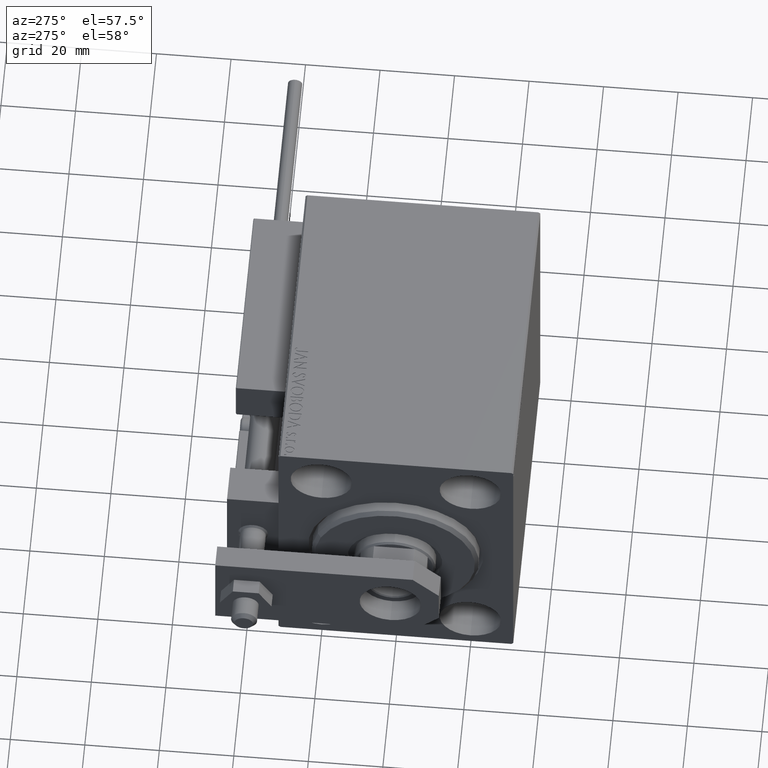
[diagram: clean part render]
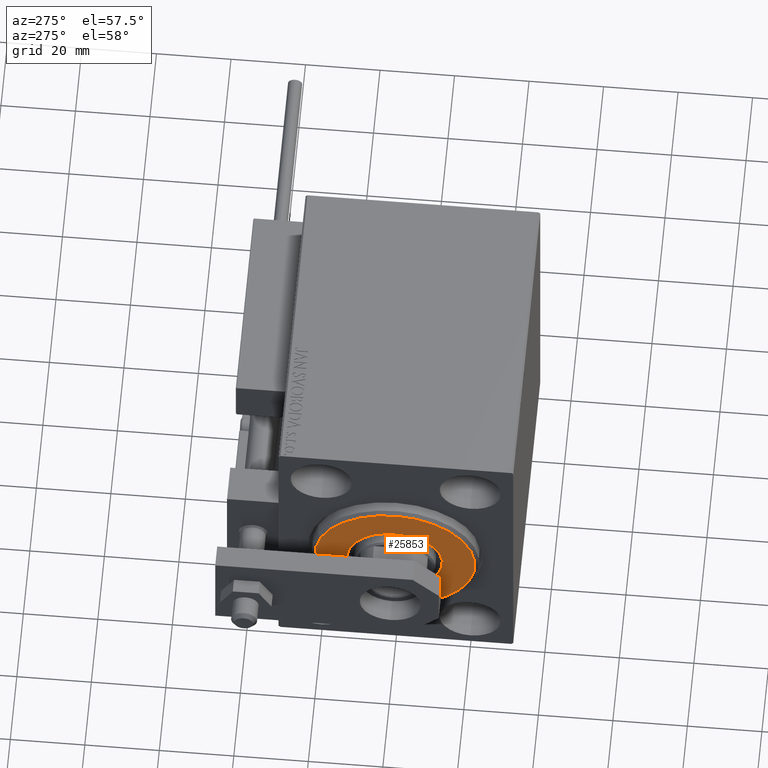
[diagram: same view with one face highlighted and labeled with its STEP entity id]
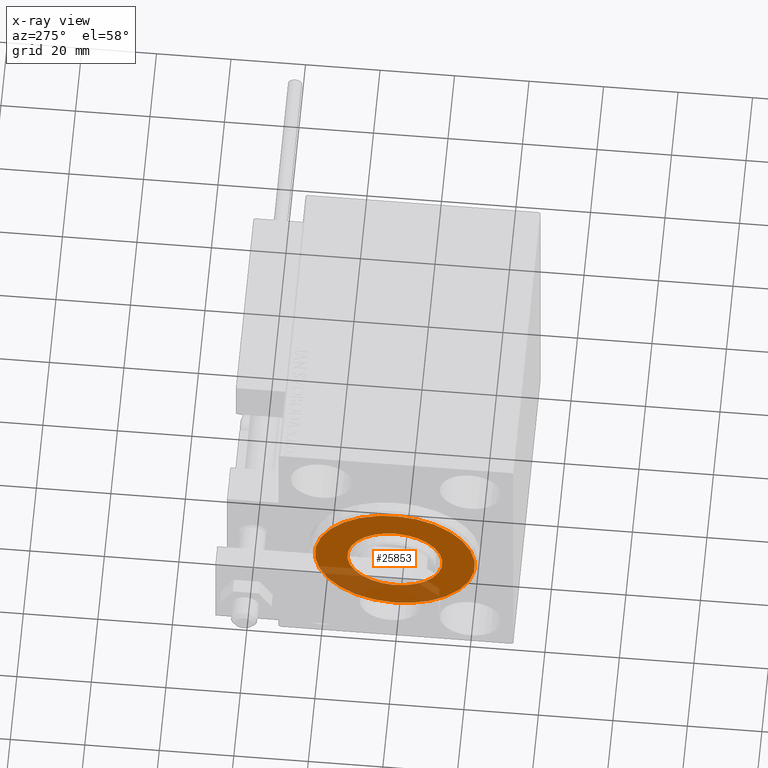
[diagram: x-ray of the same camera — body ghosted, the highlighted face saturated]
A machine part, auxiliary view. The second image highlights one B-rep face of the part: STEP entity #25853.
The next image is the same camera in x-ray: the body ghosted, the highlighted face saturated — about 21% of this face is hidden behind the body in this view.
In plain terms, the highlighted planar face has unit normal (-1, 0, 0).
Its self-contained STEP definition (entity closure, byte-faithful):
#608 = DIRECTION ( 'NONE',  ( 0.000000000000000000, 0.000000000000000000, -1.000000000000000000 ) ) ;
#873 = AXIS2_PLACEMENT_3D ( 'NONE', #45470, #26264, #28359 ) ;
#959 = DIRECTION ( 'NONE',  ( 1.000000000000000000, -0.000000000000000000, 0.000000000000000000 ) ) ;
#1428 = CARTESIAN_POINT ( 'NONE',  ( 3.000000000000000000, 0.000000000000000000, 21.50000000000000355 ) ) ;
#2143 = AXIS2_PLACEMENT_3D ( 'NONE', #29650, #13693, #44816 ) ;
#2846 = EDGE_CURVE ( 'NONE', #11598, #10228, #22751, .T. ) ;
#3958 = AXIS2_PLACEMENT_3D ( 'NONE', #24185, #39602, #608 ) ;
#4415 = CARTESIAN_POINT ( 'NONE',  ( 3.000000000000000000, 0.000000000000000000, 12.75000000000000000 ) ) ;
#5838 = FACE_BOUND ( 'NONE', #37722, .T. ) ;
#10228 = VERTEX_POINT ( 'NONE', #4415 ) ;
#11598 = VERTEX_POINT ( 'NONE', #49890 ) ;
#13693 = DIRECTION ( 'NONE',  ( 1.000000000000000000, -0.000000000000000000, 0.000000000000000000 ) ) ;
#15811 = CIRCLE ( 'NONE', #19752, 21.50000000000000355 ) ;
#18514 = DIRECTION ( 'NONE',  ( -1.000000000000000000, 0.000000000000000000, -0.000000000000000000 ) ) ;
#19173 = EDGE_CURVE ( 'NONE', #44235, #21382, #15811, .T. ) ;
#19752 = AXIS2_PLACEMENT_3D ( 'NONE', #39453, #959, #31386 ) ;
#21382 = VERTEX_POINT ( 'NONE', #30846 ) ;
#22751 = CIRCLE ( 'NONE', #873, 12.75000000000000000 ) ;
#24185 = CARTESIAN_POINT ( 'NONE',  ( 3.000000000000000000, 0.000000000000000000, 0.000000000000000000 ) ) ;
#25853 = ADVANCED_FACE ( 'NONE', ( #37481, #5838 ), #29405, .T. ) ;
#26264 = DIRECTION ( 'NONE',  ( -1.000000000000000000, 0.000000000000000000, -0.000000000000000000 ) ) ;
#28359 = DIRECTION ( 'NONE',  ( 0.000000000000000000, 0.000000000000000000, -1.000000000000000000 ) ) ;
#29405 = PLANE ( 'NONE',  #2143 ) ;
#29463 = ORIENTED_EDGE ( 'NONE', *, *, #19173, .T. ) ;
#29650 = CARTESIAN_POINT ( 'NONE',  ( 3.000000000000000000, 0.000000000000000000, 0.000000000000000000 ) ) ;
#30555 = EDGE_CURVE ( 'NONE', #21382, #44235, #46001, .T. ) ;
#30846 = CARTESIAN_POINT ( 'NONE',  ( 3.000000000000000000, 2.694222958124177598E-15, -21.50000000000000355 ) ) ;
#31386 = DIRECTION ( 'NONE',  ( 0.000000000000000000, 0.000000000000000000, -1.000000000000000000 ) ) ;
#36409 = CIRCLE ( 'NONE', #42869, 12.75000000000000000 ) ;
#37481 = FACE_OUTER_BOUND ( 'NONE', #45141, .T. ) ;
#37722 = EDGE_LOOP ( 'NONE', ( #45617, #40463 ) ) ;
#37750 = CARTESIAN_POINT ( 'NONE',  ( 3.000000000000000000, 0.000000000000000000, 0.000000000000000000 ) ) ;
#38996 = EDGE_CURVE ( 'NONE', #10228, #11598, #36409, .T. ) ;
#39453 = CARTESIAN_POINT ( 'NONE',  ( 3.000000000000000000, 0.000000000000000000, 0.000000000000000000 ) ) ;
#39602 = DIRECTION ( 'NONE',  ( 1.000000000000000000, -0.000000000000000000, 0.000000000000000000 ) ) ;
#40463 = ORIENTED_EDGE ( 'NONE', *, *, #2846, .T. ) ;
#40719 = ORIENTED_EDGE ( 'NONE', *, *, #30555, .T. ) ;
#42869 = AXIS2_PLACEMENT_3D ( 'NONE', #37750, #18514, #45840 ) ;
#44235 = VERTEX_POINT ( 'NONE', #1428 ) ;
#44816 = DIRECTION ( 'NONE',  ( 0.000000000000000000, 0.000000000000000000, -1.000000000000000000 ) ) ;
#45141 = EDGE_LOOP ( 'NONE', ( #29463, #40719 ) ) ;
#45470 = CARTESIAN_POINT ( 'NONE',  ( 3.000000000000000000, 0.000000000000000000, 0.000000000000000000 ) ) ;
#45617 = ORIENTED_EDGE ( 'NONE', *, *, #38996, .T. ) ;
#45840 = DIRECTION ( 'NONE',  ( 0.000000000000000000, 0.000000000000000000, -1.000000000000000000 ) ) ;
#46001 = CIRCLE ( 'NONE', #3958, 21.50000000000000355 ) ;
#49890 = CARTESIAN_POINT ( 'NONE',  ( 3.000000000000000000, 1.561424668912874914E-15, -12.75000000000000000 ) ) ;